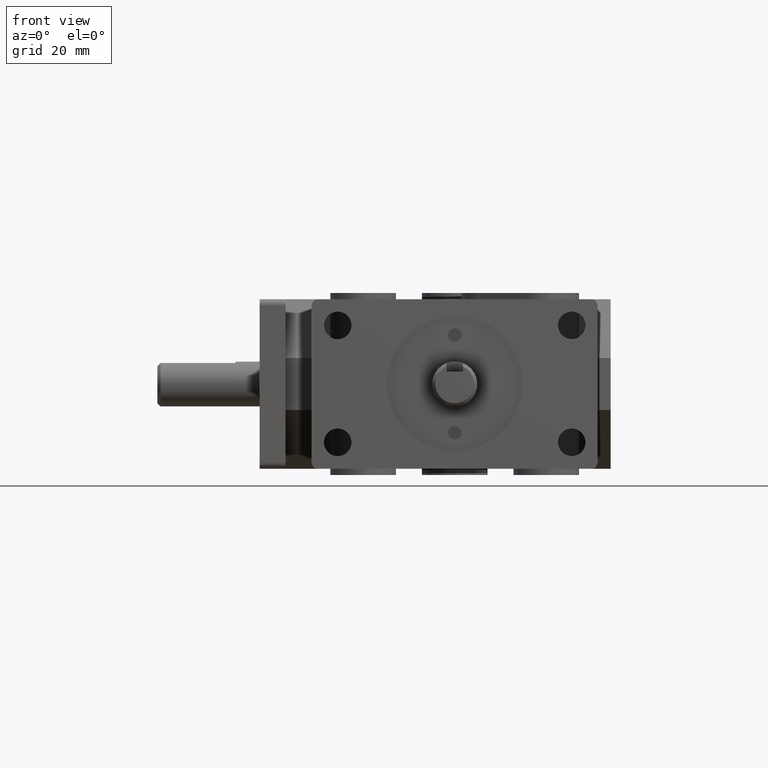
[diagram: clean part render]
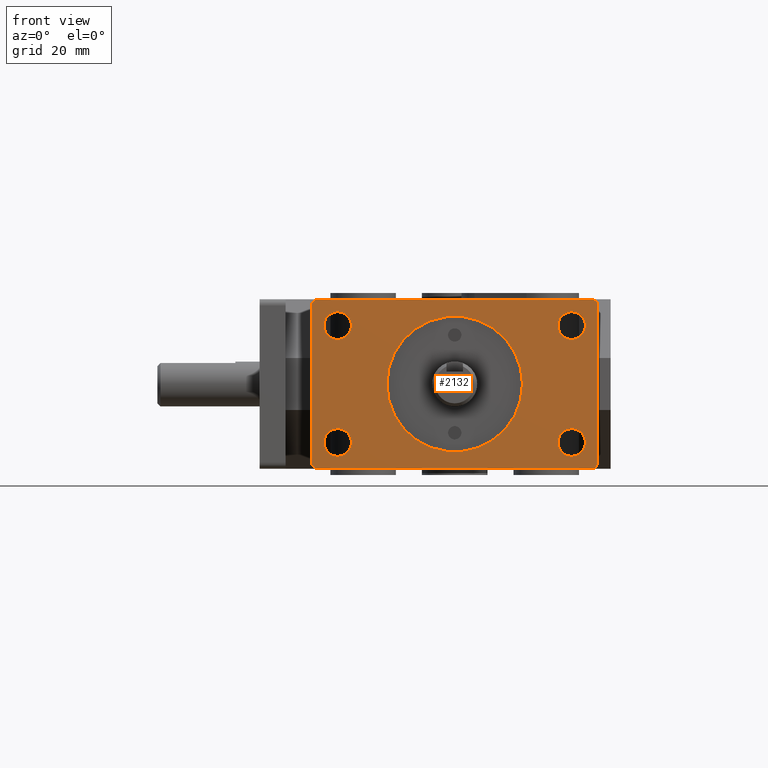
[diagram: same view with one face highlighted and labeled with its STEP entity id]
A machine part, front view. The second image highlights one B-rep face of the part: STEP entity #2132.
In plain terms, the highlighted planar face has unit normal (0, -1, 0).
Its self-contained STEP definition (entity closure, byte-faithful):
#85=FACE_BOUND('',#435,.T.);
#86=FACE_BOUND('',#436,.T.);
#87=FACE_BOUND('',#437,.T.);
#88=FACE_BOUND('',#438,.T.);
#89=FACE_BOUND('',#439,.T.);
#113=CIRCLE('',#2216,16.5608);
#133=CIRCLE('',#2258,1.524);
#135=CIRCLE('',#2261,1.524);
#137=CIRCLE('',#2264,1.524);
#139=CIRCLE('',#2267,1.524);
#171=CIRCLE('',#2349,3.3655);
#173=CIRCLE('',#2352,3.3655);
#174=CIRCLE('',#2354,3.3655);
#175=CIRCLE('',#2356,3.3655);
#290=FACE_OUTER_BOUND('',#434,.T.);
#434=EDGE_LOOP('',(#1914,#1915,#1916,#1917,#1918,#1919,#1920,#1921));
#435=EDGE_LOOP('',(#1922));
#436=EDGE_LOOP('',(#1923));
#437=EDGE_LOOP('',(#1924));
#438=EDGE_LOOP('',(#1925));
#439=EDGE_LOOP('',(#1926));
#525=LINE('',#3162,#722);
#592=LINE('',#3426,#789);
#650=LINE('',#3601,#847);
#651=LINE('',#3603,#848);
#722=VECTOR('',#2499,1.);
#789=VECTOR('',#2766,1.);
#847=VECTOR('',#2978,1.);
#848=VECTOR('',#2981,1.);
#920=VERTEX_POINT('',#3159);
#921=VERTEX_POINT('',#3161);
#944=VERTEX_POINT('',#3235);
#982=VERTEX_POINT('',#3356);
#984=VERTEX_POINT('',#3362);
#985=VERTEX_POINT('',#3363);
#988=VERTEX_POINT('',#3371);
#990=VERTEX_POINT('',#3377);
#991=VERTEX_POINT('',#3378);
#1041=VERTEX_POINT('',#3581);
#1043=VERTEX_POINT('',#3587);
#1044=VERTEX_POINT('',#3591);
#1045=VERTEX_POINT('',#3595);
#1131=EDGE_CURVE('',#921,#920,#525,.T.);
#1166=EDGE_CURVE('',#944,#944,#113,.T.);
#1219=EDGE_CURVE('',#982,#920,#133,.T.);
#1222=EDGE_CURVE('',#984,#985,#135,.T.);
#1226=EDGE_CURVE('',#921,#988,#137,.T.);
#1229=EDGE_CURVE('',#990,#991,#139,.T.);
#1258=EDGE_CURVE('',#984,#991,#592,.T.);
#1332=EDGE_CURVE('',#1041,#1041,#171,.T.);
#1335=EDGE_CURVE('',#1043,#1043,#173,.T.);
#1337=EDGE_CURVE('',#1044,#1044,#174,.T.);
#1339=EDGE_CURVE('',#1045,#1045,#175,.T.);
#1342=EDGE_CURVE('',#982,#985,#650,.T.);
#1343=EDGE_CURVE('',#988,#990,#651,.T.);
#1914=ORIENTED_EDGE('',*,*,#1219,.F.);
#1915=ORIENTED_EDGE('',*,*,#1342,.T.);
#1916=ORIENTED_EDGE('',*,*,#1222,.F.);
#1917=ORIENTED_EDGE('',*,*,#1258,.T.);
#1918=ORIENTED_EDGE('',*,*,#1229,.F.);
#1919=ORIENTED_EDGE('',*,*,#1343,.F.);
#1920=ORIENTED_EDGE('',*,*,#1226,.F.);
#1921=ORIENTED_EDGE('',*,*,#1131,.T.);
#1922=ORIENTED_EDGE('',*,*,#1332,.T.);
#1923=ORIENTED_EDGE('',*,*,#1335,.T.);
#1924=ORIENTED_EDGE('',*,*,#1337,.T.);
#1925=ORIENTED_EDGE('',*,*,#1339,.T.);
#1926=ORIENTED_EDGE('',*,*,#1166,.T.);
#2016=PLANE('',#2359);
#2132=ADVANCED_FACE('',(#290,#85,#86,#87,#88,#89),#2016,.T.);
#2216=AXIS2_PLACEMENT_3D('',#3236,#2584,#2585);
#2258=AXIS2_PLACEMENT_3D('',#3357,#2697,#2698);
#2261=AXIS2_PLACEMENT_3D('',#3364,#2704,#2705);
#2264=AXIS2_PLACEMENT_3D('',#3372,#2712,#2713);
#2267=AXIS2_PLACEMENT_3D('',#3379,#2719,#2720);
#2349=AXIS2_PLACEMENT_3D('',#3582,#2954,#2955);
#2352=AXIS2_PLACEMENT_3D('',#3588,#2961,#2962);
#2354=AXIS2_PLACEMENT_3D('',#3592,#2966,#2967);
#2356=AXIS2_PLACEMENT_3D('',#3596,#2971,#2972);
#2359=AXIS2_PLACEMENT_3D('',#3602,#2979,#2980);
#2499=DIRECTION('',(-1.,0.,0.));
#2584=DIRECTION('center_axis',(0.,1.,0.));
#2585=DIRECTION('ref_axis',(1.,0.,0.));
#2697=DIRECTION('center_axis',(0.,1.,0.));
#2698=DIRECTION('ref_axis',(-0.707106781186548,0.,0.707106781186548));
#2704=DIRECTION('center_axis',(0.,1.,0.));
#2705=DIRECTION('ref_axis',(-0.707106781186548,0.,-0.707106781186548));
#2712=DIRECTION('center_axis',(0.,1.,0.));
#2713=DIRECTION('ref_axis',(0.707106781186548,0.,0.707106781186548));
#2719=DIRECTION('center_axis',(0.,1.,0.));
#2720=DIRECTION('ref_axis',(0.707106781186548,0.,-0.707106781186548));
#2766=DIRECTION('',(1.,0.,0.));
#2954=DIRECTION('center_axis',(0.,1.,0.));
#2955=DIRECTION('ref_axis',(1.,0.,0.));
#2961=DIRECTION('center_axis',(0.,1.,0.));
#2962=DIRECTION('ref_axis',(1.,0.,0.));
#2966=DIRECTION('center_axis',(0.,1.,0.));
#2967=DIRECTION('ref_axis',(1.,0.,0.));
#2971=DIRECTION('center_axis',(0.,1.,0.));
#2972=DIRECTION('ref_axis',(1.,0.,0.));
#2978=DIRECTION('',(0.,0.,-1.));
#2979=DIRECTION('center_axis',(0.,-1.,0.));
#2980=DIRECTION('ref_axis',(0.,0.,1.));
#2981=DIRECTION('',(0.,0.,-1.));
#3159=CARTESIAN_POINT('',(-33.401,0.,20.701));
#3161=CARTESIAN_POINT('',(33.401,0.,20.701));
#3162=CARTESIAN_POINT('',(34.925,0.,20.701));
#3235=CARTESIAN_POINT('',(-16.5608,5.63993296509579E-15,2.02811307113195E-15));
#3236=CARTESIAN_POINT('Origin',(0.,5.63993296509579E-15,0.));
#3356=CARTESIAN_POINT('',(-34.925,5.63993296509579E-15,19.177));
#3357=CARTESIAN_POINT('Origin',(-33.401,5.63993296509579E-15,19.177));
#3362=CARTESIAN_POINT('',(-33.401,0.,-20.701));
#3363=CARTESIAN_POINT('',(-34.925,5.63993296509579E-15,-19.177));
#3364=CARTESIAN_POINT('Origin',(-33.401,5.63993296509579E-15,-19.177));
#3371=CARTESIAN_POINT('',(34.925,0.,19.177));
#3372=CARTESIAN_POINT('Origin',(33.401,5.63993296509579E-15,19.177));
#3377=CARTESIAN_POINT('',(34.925,0.,-19.177));
#3378=CARTESIAN_POINT('',(33.401,0.,-20.701));
#3379=CARTESIAN_POINT('Origin',(33.401,5.63993296509579E-15,-19.177));
#3426=CARTESIAN_POINT('',(34.925,0.,-20.701));
#3581=CARTESIAN_POINT('',(25.2095,5.63993296509579E-15,-14.2748));
#3582=CARTESIAN_POINT('Origin',(28.575,5.63993296509579E-15,-14.2748));
#3587=CARTESIAN_POINT('',(-31.9405,5.63993296509579E-15,14.2748));
#3588=CARTESIAN_POINT('Origin',(-28.575,5.63993296509579E-15,14.2748));
#3591=CARTESIAN_POINT('',(-31.9405,5.63993296509579E-15,-14.2748));
#3592=CARTESIAN_POINT('Origin',(-28.575,5.63993296509579E-15,-14.2748));
#3595=CARTESIAN_POINT('',(25.2095,5.63993296509579E-15,14.2748));
#3596=CARTESIAN_POINT('Origin',(28.575,5.63993296509579E-15,14.2748));
#3601=CARTESIAN_POINT('',(-34.925,5.63993296509579E-15,0.));
#3602=CARTESIAN_POINT('Origin',(-34.925,5.63993296509579E-15,0.));
#3603=CARTESIAN_POINT('',(34.925,0.,0.));